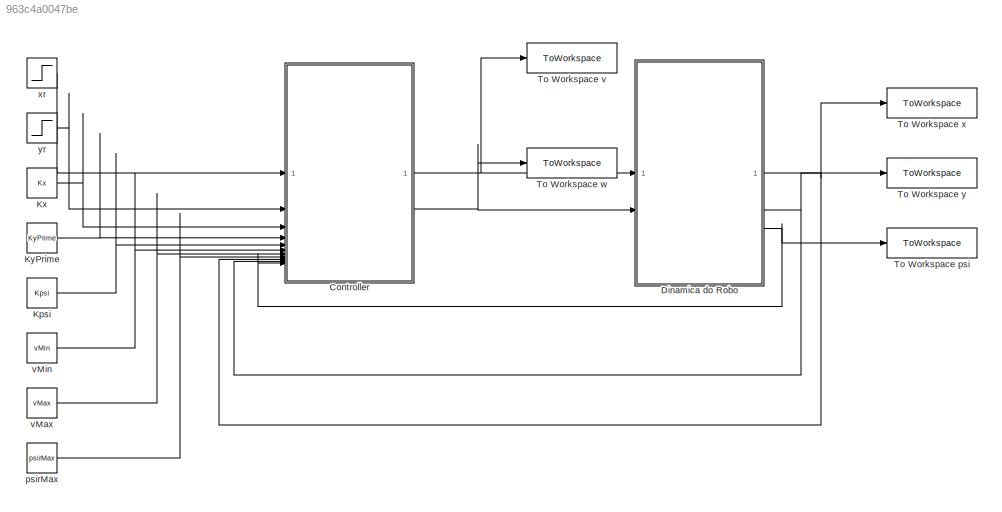
MODEL slx_963c4a0047be
KIND model
CONFIG AbsTol = auto
CONFIG EnableMultiTasking = off
CONFIG FixedStep = 1e-3
CONFIG MaxStep = auto
CONFIG MinStep = auto
CONFIG RelTol = 1e-3
CONFIG SampleTimeConstraint = Unconstrained
CONFIG SolverName = FixedStepAuto
CONFIG StartTime = 0.0
CONFIG StopTime = 2
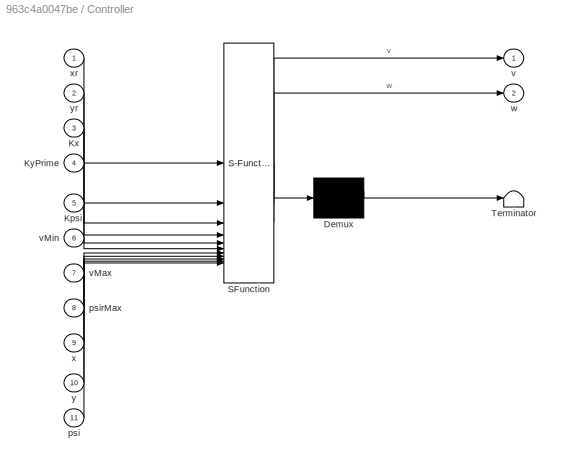
BLOCK [SubSystem] Controller
  ErrorFcn = Stateflow.Translate.translate
  PermitHierarchicalResolution = ExplicitOnly
  SFBlockType = MATLAB Function
  TreatAsAtomicUnit = on
BLOCK [Demux] Controller/ Demux 
  Outputs = 1
BLOCK [S-Function] Controller/ SFunction 
  EnableBusSupport = on
  FunctionName = sf_sfun
  PortCounts = [11 3]
  SFcnIsStateOwnerBlock = off
  SFunctionDeploymentMode = off
  Tag = Stateflow S-Function 2
BLOCK [Terminator] Controller/ Terminator 
BLOCK [Inport] Controller/Kpsi
  Port = 5
BLOCK [Inport] Controller/Kx
  Port = 3
BLOCK [Inport] Controller/KyPrime
  Port = 4
BLOCK [Inport] Controller/psi
  Port = 11
BLOCK [Inport] Controller/psirMax
  Port = 8
BLOCK [Outport] Controller/v
BLOCK [Inport] Controller/vMax
  Port = 7
BLOCK [Inport] Controller/vMin
  Port = 6
BLOCK [Outport] Controller/w
  Port = 2
BLOCK [Inport] Controller/x
  Port = 9
BLOCK [Inport] Controller/xr
BLOCK [Inport] Controller/y
  Port = 10
BLOCK [Inport] Controller/yr
  Port = 2
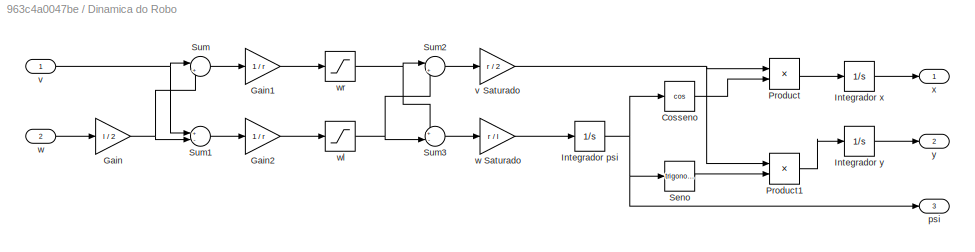
BLOCK [SubSystem] Dinamica do Robo
BLOCK [Trigonometry] Dinamica do Robo/Cosseno
  Operator = cos
BLOCK [Gain] Dinamica do Robo/Gain
  Gain = l / 2
BLOCK [Gain] Dinamica do Robo/Gain1
  Gain = 1 / r
BLOCK [Gain] Dinamica do Robo/Gain2
  Gain = 1 / r
BLOCK [Integrator] Dinamica do Robo/Integrador psi
  InitialCondition = psi0
BLOCK [Integrator] Dinamica do Robo/Integrador x
  InitialCondition = x0
BLOCK [Integrator] Dinamica do Robo/Integrador y
  InitialCondition = y0
BLOCK [Product] Dinamica do Robo/Product
BLOCK [Product] Dinamica do Robo/Product1
BLOCK [Trigonometry] Dinamica do Robo/Seno
BLOCK [Sum] Dinamica do Robo/Sum
  Inputs = |++
BLOCK [Sum] Dinamica do Robo/Sum1
  Inputs = +-|
BLOCK [Sum] Dinamica do Robo/Sum2
  Inputs = |++
BLOCK [Sum] Dinamica do Robo/Sum3
  Inputs = +-|
BLOCK [Outport] Dinamica do Robo/psi
  Port = 3
BLOCK [Inport] Dinamica do Robo/v
BLOCK [Gain] Dinamica do Robo/v Saturado
  Gain = r / 2
BLOCK [Inport] Dinamica do Robo/w
  Port = 2
BLOCK [Gain] Dinamica do Robo/w Saturado
  Gain = r / l
BLOCK [Saturate] Dinamica do Robo/wl
  LowerLimit = -maxWheelSpeed
  UpperLimit = maxWheelSpeed
BLOCK [Saturate] Dinamica do Robo/wr
  LowerLimit = -maxWheelSpeed
  UpperLimit = maxWheelSpeed
BLOCK [Outport] Dinamica do Robo/x
BLOCK [Outport] Dinamica do Robo/y
  Port = 2
BLOCK [Constant] Kpsi
  Value = Kpsi
BLOCK [Constant] Kx
  Value = Kx
BLOCK [Constant] KyPrime
  Value = KyPrime
BLOCK [ToWorkspace] To Workspace psi
  FixptAsFi = on
  MaxDataPoints = inf
  SampleTime = -1
  SaveFormat = Structure With Time
  VariableName = psi
BLOCK [ToWorkspace] To Workspace v
  FixptAsFi = on
  MaxDataPoints = inf
  SampleTime = -1
  SaveFormat = Structure With Time
  VariableName = v
BLOCK [ToWorkspace] To Workspace w
  FixptAsFi = on
  MaxDataPoints = inf
  SampleTime = -1
  SaveFormat = Structure With Time
  VariableName = w
BLOCK [ToWorkspace] To Workspace x
  FixptAsFi = on
  MaxDataPoints = inf
  SampleTime = -1
  SaveFormat = Structure With Time
  VariableName = x
BLOCK [ToWorkspace] To Workspace y
  FixptAsFi = on
  MaxDataPoints = inf
  SampleTime = -1
  SaveFormat = Structure With Time
  VariableName = y
BLOCK [Constant] psirMax
  Value = psirMax
BLOCK [Constant] vMax
  Value = vMax
BLOCK [Constant] vMin
  Value = vMin
BLOCK [Step] xr
  After = xr
  SampleTime = 0
  Time = 0
BLOCK [Step] yr
  After = yr
  SampleTime = 0
  Time = 0
NET Controller:1 -> Dinamica do Robo:1, To Workspace v:1
NET Controller:2 -> Dinamica do Robo:2, To Workspace w:1
LINE Dinamica do Robo/Cosseno:1 -> Dinamica do Robo/Product:2
LINE Dinamica do Robo/Gain1:1 -> Dinamica do Robo/wr:1
LINE Dinamica do Robo/Gain2:1 -> Dinamica do Robo/wl:1
NET Dinamica do Robo/Gain:1 -> Dinamica do Robo/Sum1:2, Dinamica do Robo/Sum:2
NET Dinamica do Robo/Integrador psi:1 -> Dinamica do Robo/Cosseno:1, Dinamica do Robo/Seno:1, Dinamica do Robo/psi:1
LINE Dinamica do Robo/Integrador x:1 -> Dinamica do Robo/x:1
LINE Dinamica do Robo/Integrador y:1 -> Dinamica do Robo/y:1
LINE Dinamica do Robo/Product1:1 -> Dinamica do Robo/Integrador y:1
LINE Dinamica do Robo/Product:1 -> Dinamica do Robo/Integrador x:1
LINE Dinamica do Robo/Seno:1 -> Dinamica do Robo/Product1:2
LINE Dinamica do Robo/Sum1:1 -> Dinamica do Robo/Gain2:1
LINE Dinamica do Robo/Sum2:1 -> Dinamica do Robo/v Saturado:1
LINE Dinamica do Robo/Sum3:1 -> Dinamica do Robo/w Saturado:1
LINE Dinamica do Robo/Sum:1 -> Dinamica do Robo/Gain1:1
NET Dinamica do Robo/v Saturado:1 -> Dinamica do Robo/Product1:1, Dinamica do Robo/Product:1
NET Dinamica do Robo/v:1 -> Dinamica do Robo/Sum1:1, Dinamica do Robo/Sum:1
LINE Dinamica do Robo/w Saturado:1 -> Dinamica do Robo/Integrador psi:1
LINE Dinamica do Robo/w:1 -> Dinamica do Robo/Gain:1
NET Dinamica do Robo/wl:1 -> Dinamica do Robo/Sum2:2, Dinamica do Robo/Sum3:2
NET Dinamica do Robo/wr:1 -> Dinamica do Robo/Sum2:1, Dinamica do Robo/Sum3:1
NET Dinamica do Robo:1 -> Controller:9, To Workspace x:1
NET Dinamica do Robo:2 -> Controller:10, To Workspace y:1
NET Dinamica do Robo:3 -> Controller:11, To Workspace psi:1
LINE Kpsi:1 -> Controller:5
LINE Kx:1 -> Controller:3
LINE KyPrime:1 -> Controller:4
LINE psirMax:1 -> Controller:8
LINE vMax:1 -> Controller:7
LINE vMin:1 -> Controller:6
LINE xr:1 -> Controller:1
LINE yr:1 -> Controller:2
note: NET lines group one-source signal fan-out (src -> all destinations, sorted); 1:1 wires keep LINE
CHART Controller states=1 transitions=1
  STATE_LABEL 'eML_blk_kernel()'
  STATE_LABEL 'SCRIPT:\nfunction [v, w] = controller(xr, yr, Kx, KyPrime, Kpsi, vMin, vMax, psirMax, x, y, psi)\n% Implementa um controlador para um robo seguir uma linha, parando em um \n% ponto dessa linha.\n% xr: referencia de x (ponto na linha).\n% yr: referencia de posicao da linha.\n% Kx: ganho proporcional do controlador frontal.\n% KyPrime: parte constante do ganho de posicao do controlador lateral\n% Kpsi: ganh...<+676ch>'
CHART  states=0 transitions=0
